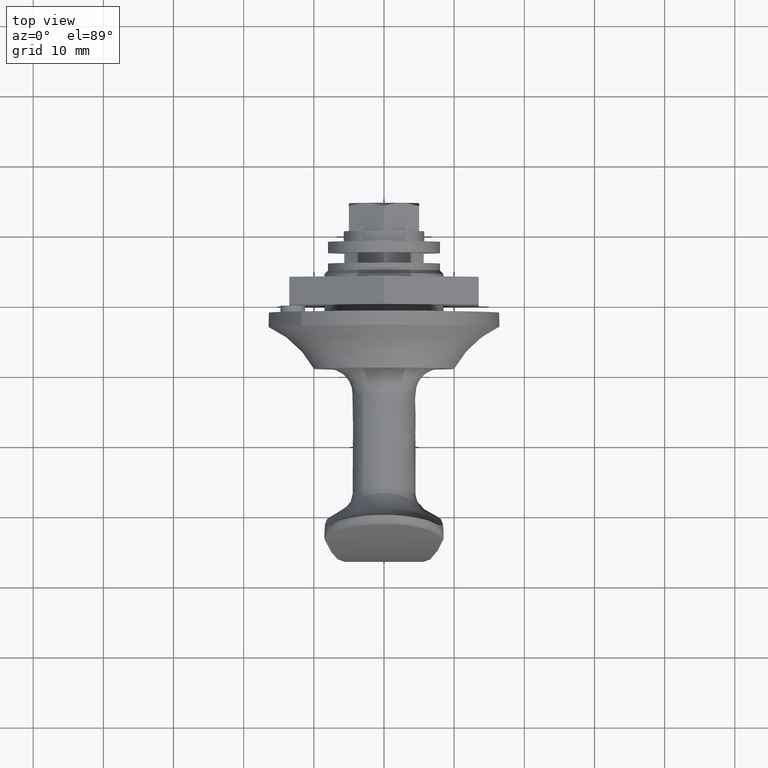
[diagram: clean part render]
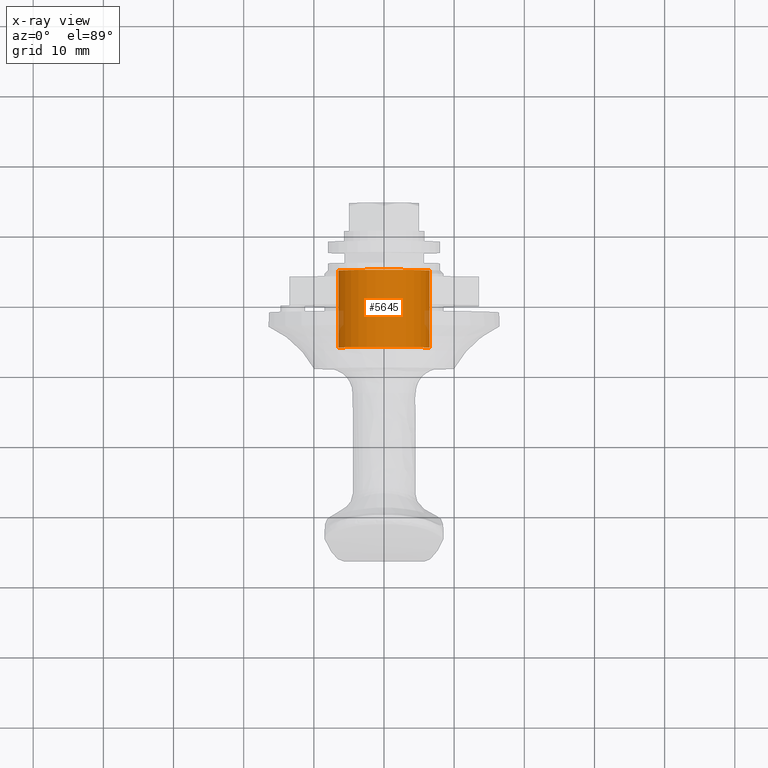
[diagram: x-ray — body ghosted, one internal face saturated and labeled with its STEP entity id]
A machine part, top view, then the same camera in x-ray: the body is ghosted and one INTERNAL B-rep face — a face not visible from any outside direction — is saturated and labeled: STEP entity #5645.
In plain terms, the highlighted face is a freeform B-spline surface patch.
Its self-contained STEP definition (entity closure, byte-faithful):
#5337=CARTESIAN_POINT('',(6.487876189733921,3.0,-0.396815507112499));
#5338=VERTEX_POINT('',#5337);
#5352=CARTESIAN_POINT('',(0.0,3.0,6.500000000000100));
#5353=VERTEX_POINT('',#5352);
#5354=CARTESIAN_POINT('',(6.487876189733922,3.000000000000000,-0.396815507112497));
#5355=CARTESIAN_POINT('',(6.500000000000100,3.000000000000000,-0.198592961508982));
#5356=CARTESIAN_POINT('',(6.500000000000100,3.0,0.0));
#5357=CARTESIAN_POINT('',(6.500000000000099,3.000000000000000,6.500000000000099));
#5358=CARTESIAN_POINT('',(0.0,3.0,6.500000000000100));
#5366=(BOUNDED_CURVE()B_SPLINE_CURVE(2,(#5354,#5355,#5356,#5357,#5358),.UNSPECIFIED.,.F.,.U.)B_SPLINE_CURVE_WITH_KNOTS((3,2,3),(0.739332962238353,0.750000000000000,1.0),.UNSPECIFIED.)CURVE()GEOMETRIC_REPRESENTATION_ITEM()RATIONAL_B_SPLINE_CURVE((0.976072041665454,0.987502787899147,1.0,0.707106781186547,1.0))REPRESENTATION_ITEM(''));
#5367=EDGE_CURVE('',#5338,#5353,#5366,.T.);
#5369=CARTESIAN_POINT('',(-6.487876189733920,3.0,0.396815507112500));
#5370=VERTEX_POINT('',#5369);
#5371=CARTESIAN_POINT('',(0.0,3.0,6.500000000000100));
#5372=CARTESIAN_POINT('',(-6.114589434758767,3.000000000000001,6.500000000000098));
#5373=CARTESIAN_POINT('',(-6.487876189733922,3.000000000000000,0.396815507112499));
#5381=(BOUNDED_CURVE()B_SPLINE_CURVE(2,(#5371,#5372,#5373),.UNSPECIFIED.,.F.,.U.)B_SPLINE_CURVE_WITH_KNOTS((3,3),(0.0,0.239332962238353),.UNSPECIFIED.)CURVE()GEOMETRIC_REPRESENTATION_ITEM()RATIONAL_B_SPLINE_CURVE((1.0,0.719603993287401,0.976072041665454))REPRESENTATION_ITEM(''));
#5382=EDGE_CURVE('',#5353,#5370,#5381,.T.);
#5543=CARTESIAN_POINT('',(-6.487876189733920,14.0,0.396815507112500));
#5544=VERTEX_POINT('',#5543);
#5545=CARTESIAN_POINT('',(-6.487876189733920,14.0,0.396815507112500));
#5546=CARTESIAN_POINT('',(-6.487876189733920,3.0,0.396815507112500));
#5547=QUASI_UNIFORM_CURVE('',1,(#5545,#5546),.UNSPECIFIED.,.F.,.U.);
#5548=EDGE_CURVE('',#5544,#5370,#5547,.T.);
#5567=CARTESIAN_POINT('',(6.487876189733921,14.0,-0.396815507112499));
#5568=VERTEX_POINT('',#5567);
#5582=CARTESIAN_POINT('',(6.487876189733921,14.0,-0.396815507112499));
#5583=CARTESIAN_POINT('',(6.487876189733921,3.0,-0.396815507112499));
#5584=QUASI_UNIFORM_CURVE('',1,(#5582,#5583),.UNSPECIFIED.,.F.,.U.);
#5585=EDGE_CURVE('',#5568,#5338,#5584,.T.);
#5591=CARTESIAN_POINT('',(6.487876189742233,14.275000000000000,-0.396815506976576));
#5592=CARTESIAN_POINT('',(6.884691696718809,14.275000000000004,6.091060682765657));
#5593=CARTESIAN_POINT('',(0.396815506976576,14.275000000000000,6.487876189742233));
#5594=CARTESIAN_POINT('',(-6.091060682765657,14.275000000000004,6.884691696718809));
#5595=CARTESIAN_POINT('',(-6.487876189742233,14.275000000000000,0.396815506976576));
#5596=CARTESIAN_POINT('',(6.487876189742233,2.718124999999999,-0.396815506976576));
#5597=CARTESIAN_POINT('',(6.884691696718809,2.718124999999999,6.091060682765657));
#5598=CARTESIAN_POINT('',(0.396815506976576,2.718124999999999,6.487876189742233));
#5599=CARTESIAN_POINT('',(-6.091060682765657,2.718124999999999,6.884691696718809));
#5600=CARTESIAN_POINT('',(-6.487876189742233,2.718124999999999,0.396815506976576));
#5608=(BOUNDED_SURFACE()B_SPLINE_SURFACE(2,1,((#5591,#5596),(#5592,#5597),(#5593,#5598),(#5594,#5599),(#5595,#5600)),.UNSPECIFIED.,.F.,.F.,.U.)B_SPLINE_SURFACE_WITH_KNOTS((3,2,3),(2,2),(0.0,10.769552621700630,21.539105243401270),(0.0,11.556875000000010),.UNSPECIFIED.)GEOMETRIC_REPRESENTATION_ITEM()RATIONAL_B_SPLINE_SURFACE(((1.0,1.0),(0.707106781186548,0.707106781186548),(1.0,1.0),(0.707106781186548,0.707106781186548),(1.0,1.0)))REPRESENTATION_ITEM('')SURFACE());
#5609=ORIENTED_EDGE('',*,*,#5382,.F.);
#5610=ORIENTED_EDGE('',*,*,#5367,.F.);
#5611=ORIENTED_EDGE('',*,*,#5585,.F.);
#5612=CARTESIAN_POINT('',(0.0,14.0,6.500000000000100));
#5613=VERTEX_POINT('',#5612);
#5614=CARTESIAN_POINT('',(6.487876189733922,13.999999999999998,-0.396815507112497));
#5615=CARTESIAN_POINT('',(6.500000000000100,13.999999999999995,-0.198592961508982));
#5616=CARTESIAN_POINT('',(6.500000000000100,14.0,0.0));
#5617=CARTESIAN_POINT('',(6.500000000000099,13.999999999999998,6.500000000000099));
#5618=CARTESIAN_POINT('',(0.0,14.0,6.500000000000100));
#5626=(BOUNDED_CURVE()B_SPLINE_CURVE(2,(#5614,#5615,#5616,#5617,#5618),.UNSPECIFIED.,.F.,.U.)B_SPLINE_CURVE_WITH_KNOTS((3,2,3),(0.739332962238353,0.750000000000000,1.0),.UNSPECIFIED.)CURVE()GEOMETRIC_REPRESENTATION_ITEM()RATIONAL_B_SPLINE_CURVE((0.976072041665454,0.987502787899147,1.0,0.707106781186547,1.0))REPRESENTATION_ITEM(''));
#5627=EDGE_CURVE('',#5568,#5613,#5626,.T.);
#5628=ORIENTED_EDGE('',*,*,#5627,.T.);
#5629=CARTESIAN_POINT('',(0.0,14.0,6.500000000000100));
#5630=CARTESIAN_POINT('',(-6.114589434758767,14.0,6.500000000000098));
#5631=CARTESIAN_POINT('',(-6.487876189733922,14.000000000000002,0.396815507112499));
#5639=(BOUNDED_CURVE()B_SPLINE_CURVE(2,(#5629,#5630,#5631),.UNSPECIFIED.,.F.,.U.)B_SPLINE_CURVE_WITH_KNOTS((3,3),(0.0,0.239332962238353),.UNSPECIFIED.)CURVE()GEOMETRIC_REPRESENTATION_ITEM()RATIONAL_B_SPLINE_CURVE((1.0,0.719603993287401,0.976072041665454))REPRESENTATION_ITEM(''));
#5640=EDGE_CURVE('',#5613,#5544,#5639,.T.);
#5641=ORIENTED_EDGE('',*,*,#5640,.T.);
#5642=ORIENTED_EDGE('',*,*,#5548,.T.);
#5643=EDGE_LOOP('',(#5609,#5610,#5611,#5628,#5641,#5642));
#5644=FACE_OUTER_BOUND('',#5643,.T.);
#5645=ADVANCED_FACE('',(#5644),#5608,.T.);